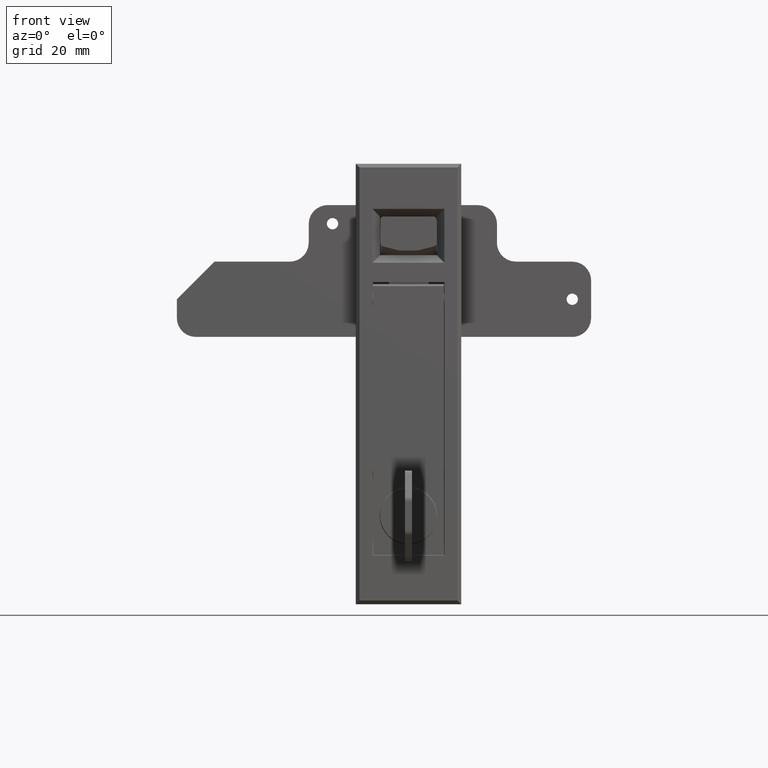
[diagram: clean part render]
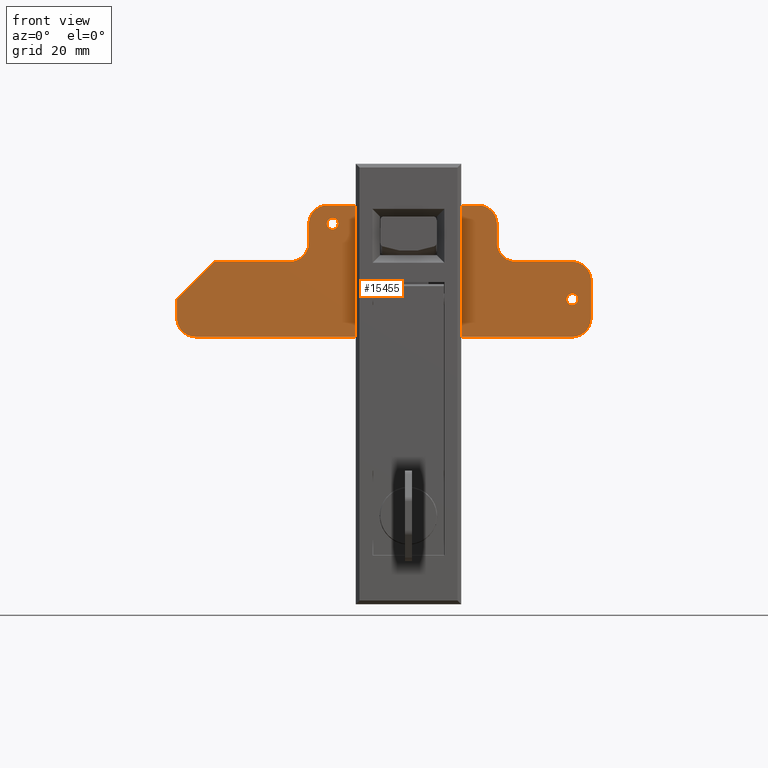
[diagram: same view with one face highlighted and labeled with its STEP entity id]
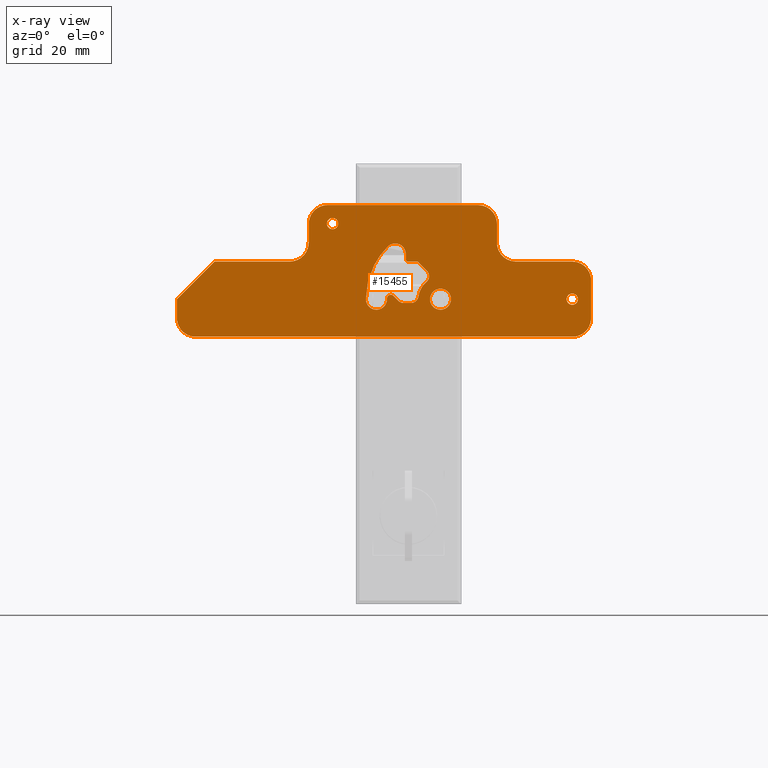
[diagram: x-ray of the same camera — body ghosted, the highlighted face saturated]
A machine part, front view. The second image highlights one B-rep face of the part: STEP entity #15455.
The next image is the same camera in x-ray: the body ghosted, the highlighted face saturated — about 0% of this face is hidden behind the body in this view.
In plain terms, the highlighted face is a freeform B-spline surface patch.
Its self-contained STEP definition (entity closure, byte-faithful):
#13598=CARTESIAN_POINT('',(0.0,20.170000000000002,21.574999999999999));
#13599=VERTEX_POINT('',#13598);
#13600=CARTESIAN_POINT('',(-1.249001E-016,18.674623999476950,20.192688644565582));
#13601=VERTEX_POINT('',#13600);
#13602=CARTESIAN_POINT('',(0.0,20.170000000000002,21.574999999999999));
#13603=CARTESIAN_POINT('',(0.0,18.783414264324193,21.575000000000003));
#13604=CARTESIAN_POINT('',(-1.249001E-016,18.674623999476960,20.192688644565575));
#13612=(BOUNDED_CURVE()B_SPLINE_CURVE(2,(#13602,#13603,#13604),.UNSPECIFIED.,.F.,.U.)B_SPLINE_CURVE_WITH_KNOTS((3,3),(0.0,0.236331300409500),.UNSPECIFIED.)CURVE()GEOMETRIC_REPRESENTATION_ITEM()RATIONAL_B_SPLINE_CURVE((1.0,0.723120658866771,0.969723355705874))REPRESENTATION_ITEM(''));
#13613=EDGE_CURVE('',#13599,#13601,#13612,.T.);
#13615=CARTESIAN_POINT('',(-1.249001E-016,21.665376000523050,19.957311355434431));
#13616=VERTEX_POINT('',#13615);
#13617=CARTESIAN_POINT('',(-1.249001E-016,21.665376000523054,19.957311355434427));
#13618=CARTESIAN_POINT('',(0.0,21.669999999999998,20.016064838510168));
#13619=CARTESIAN_POINT('',(0.0,21.670000000000002,20.074999999999999));
#13620=CARTESIAN_POINT('',(0.0,21.670000000000005,21.574999999999996));
#13621=CARTESIAN_POINT('',(0.0,20.170000000000002,21.574999999999999));
#13629=(BOUNDED_CURVE()B_SPLINE_CURVE(2,(#13617,#13618,#13619,#13620,#13621),.UNSPECIFIED.,.F.,.U.)B_SPLINE_CURVE_WITH_KNOTS((3,2,3),(0.736331300409500,0.750000000000000,1.0),.UNSPECIFIED.)CURVE()GEOMETRIC_REPRESENTATION_ITEM()RATIONAL_B_SPLINE_CURVE((0.969723355705874,0.983986122319777,1.0,0.707106781186548,1.0))REPRESENTATION_ITEM(''));
#13630=EDGE_CURVE('',#13616,#13599,#13629,.T.);
#13697=CARTESIAN_POINT('',(0.0,20.170000000000002,18.574999999999999));
#13698=VERTEX_POINT('',#13697);
#13699=CARTESIAN_POINT('',(-1.249001E-016,18.674623999476960,20.192688644565575));
#13700=CARTESIAN_POINT('',(0.0,18.669999999999998,20.133935161489831));
#13701=CARTESIAN_POINT('',(0.0,18.670000000000002,20.074999999999999));
#13702=CARTESIAN_POINT('',(0.0,18.669999999999998,18.574999999999999));
#13703=CARTESIAN_POINT('',(0.0,20.170000000000002,18.574999999999999));
#13711=(BOUNDED_CURVE()B_SPLINE_CURVE(2,(#13699,#13700,#13701,#13702,#13703),.UNSPECIFIED.,.F.,.U.)B_SPLINE_CURVE_WITH_KNOTS((3,2,3),(0.236331300409500,0.250000000000000,0.500000000000000),.UNSPECIFIED.)CURVE()GEOMETRIC_REPRESENTATION_ITEM()RATIONAL_B_SPLINE_CURVE((0.969723355705874,0.983986122319777,1.0,0.707106781186548,1.0))REPRESENTATION_ITEM(''));
#13712=EDGE_CURVE('',#13601,#13698,#13711,.T.);
#13746=CARTESIAN_POINT('',(0.0,20.170000000000002,18.574999999999999));
#13747=CARTESIAN_POINT('',(0.0,21.556585735675814,18.574999999999999));
#13748=CARTESIAN_POINT('',(-1.249001E-016,21.665376000523057,19.957311355434427));
#13756=(BOUNDED_CURVE()B_SPLINE_CURVE(2,(#13746,#13747,#13748),.UNSPECIFIED.,.F.,.U.)B_SPLINE_CURVE_WITH_KNOTS((3,3),(0.500000000000000,0.736331300409500),.UNSPECIFIED.)CURVE()GEOMETRIC_REPRESENTATION_ITEM()RATIONAL_B_SPLINE_CURVE((1.0,0.723120658866770,0.969723355705875))REPRESENTATION_ITEM(''));
#13757=EDGE_CURVE('',#13698,#13616,#13756,.T.);
#13780=CARTESIAN_POINT('',(0.0,-43.500000000000000,1.499999999999997));
#13781=VERTEX_POINT('',#13780);
#13782=CARTESIAN_POINT('',(-1.249001E-016,-44.995376000523052,0.117688644565571));
#13783=VERTEX_POINT('',#13782);
#13784=CARTESIAN_POINT('',(0.0,-43.500000000000000,1.499999999999997));
#13785=CARTESIAN_POINT('',(0.0,-44.886585735675794,1.499999999999998));
#13786=CARTESIAN_POINT('',(-1.249001E-016,-44.995376000523052,0.117688644565571));
#13794=(BOUNDED_CURVE()B_SPLINE_CURVE(2,(#13784,#13785,#13786),.UNSPECIFIED.,.F.,.U.)B_SPLINE_CURVE_WITH_KNOTS((3,3),(0.0,0.236331300409500),.UNSPECIFIED.)CURVE()GEOMETRIC_REPRESENTATION_ITEM()RATIONAL_B_SPLINE_CURVE((1.0,0.723120658866770,0.969723355705874))REPRESENTATION_ITEM(''));
#13795=EDGE_CURVE('',#13781,#13783,#13794,.T.);
#13797=CARTESIAN_POINT('',(-1.249001E-016,-42.004623999476948,-0.117688644565576));
#13798=VERTEX_POINT('',#13797);
#13799=CARTESIAN_POINT('',(-1.249001E-016,-42.004623999476948,-0.117688644565576));
#13800=CARTESIAN_POINT('',(0.0,-41.999999999999993,-0.058935161489832));
#13801=CARTESIAN_POINT('',(0.0,-41.999999999999993,-2.663519E-015));
#13802=CARTESIAN_POINT('',(0.0,-41.999999999999993,1.499999999999997));
#13803=CARTESIAN_POINT('',(0.0,-43.500000000000000,1.499999999999997));
#13811=(BOUNDED_CURVE()B_SPLINE_CURVE(2,(#13799,#13800,#13801,#13802,#13803),.UNSPECIFIED.,.F.,.U.)B_SPLINE_CURVE_WITH_KNOTS((3,2,3),(0.736331300409500,0.750000000000000,1.0),.UNSPECIFIED.)CURVE()GEOMETRIC_REPRESENTATION_ITEM()RATIONAL_B_SPLINE_CURVE((0.969723355705874,0.983986122319777,1.0,0.707106781186548,1.0))REPRESENTATION_ITEM(''));
#13812=EDGE_CURVE('',#13798,#13781,#13811,.T.);
#13879=CARTESIAN_POINT('',(0.0,-43.500000000000000,-1.500000000000003));
#13880=VERTEX_POINT('',#13879);
#13881=CARTESIAN_POINT('',(-1.249001E-016,-44.995376000523052,0.117688644565571));
#13882=CARTESIAN_POINT('',(0.0,-45.000000000000007,0.058935161489826));
#13883=CARTESIAN_POINT('',(0.0,-45.0,-2.663519E-015));
#13884=CARTESIAN_POINT('',(0.0,-45.0,-1.500000000000002));
#13885=CARTESIAN_POINT('',(0.0,-43.500000000000000,-1.500000000000003));
#13893=(BOUNDED_CURVE()B_SPLINE_CURVE(2,(#13881,#13882,#13883,#13884,#13885),.UNSPECIFIED.,.F.,.U.)B_SPLINE_CURVE_WITH_KNOTS((3,2,3),(0.236331300409500,0.250000000000000,0.500000000000000),.UNSPECIFIED.)CURVE()GEOMETRIC_REPRESENTATION_ITEM()RATIONAL_B_SPLINE_CURVE((0.969723355705874,0.983986122319777,1.0,0.707106781186548,1.0))REPRESENTATION_ITEM(''));
#13894=EDGE_CURVE('',#13783,#13880,#13893,.T.);
#13928=CARTESIAN_POINT('',(0.0,-43.500000000000000,-1.500000000000003));
#13929=CARTESIAN_POINT('',(0.0,-42.113414264324184,-1.500000000000003));
#13930=CARTESIAN_POINT('',(-1.249001E-016,-42.004623999476948,-0.117688644565576));
#13938=(BOUNDED_CURVE()B_SPLINE_CURVE(2,(#13928,#13929,#13930),.UNSPECIFIED.,.F.,.U.)B_SPLINE_CURVE_WITH_KNOTS((3,3),(0.500000000000000,0.736331300409500),.UNSPECIFIED.)CURVE()GEOMETRIC_REPRESENTATION_ITEM()RATIONAL_B_SPLINE_CURVE((1.0,0.723120658866770,0.969723355705875))REPRESENTATION_ITEM(''));
#13939=EDGE_CURVE('',#13880,#13798,#13938,.T.);
#13962=CARTESIAN_POINT('',(0.0,-8.500000000000000,2.799999999999999));
#13963=VERTEX_POINT('',#13962);
#13964=CARTESIAN_POINT('',(-1.249001E-016,-11.291368534432429,0.219685468296303));
#13965=VERTEX_POINT('',#13964);
#13966=CARTESIAN_POINT('',(0.0,-8.500000000000000,2.799999999999999));
#13967=CARTESIAN_POINT('',(0.0,-11.088293376162412,2.799999999999999));
#13968=CARTESIAN_POINT('',(-1.249001E-016,-11.291368534432431,0.219685468296303));
#13976=(BOUNDED_CURVE()B_SPLINE_CURVE(2,(#13966,#13967,#13968),.UNSPECIFIED.,.F.,.U.)B_SPLINE_CURVE_WITH_KNOTS((3,3),(0.0,0.236331300601037),.UNSPECIFIED.)CURVE()GEOMETRIC_REPRESENTATION_ITEM()RATIONAL_B_SPLINE_CURVE((1.0,0.723120658642371,0.969723356105597))REPRESENTATION_ITEM(''));
#13977=EDGE_CURVE('',#13963,#13965,#13976,.T.);
#13979=CARTESIAN_POINT('',(-1.249001E-016,-5.708631465567574,-0.219685468296305));
#13980=VERTEX_POINT('',#13979);
#13981=CARTESIAN_POINT('',(-1.249001E-016,-5.708631465567574,-0.219685468296305));
#13982=CARTESIAN_POINT('',(0.0,-5.700000000000000,-0.110012299881012));
#13983=CARTESIAN_POINT('',(0.0,-5.700000000000000,-8.881784E-016));
#13984=CARTESIAN_POINT('',(0.0,-5.699999999999999,2.799999999999999));
#13985=CARTESIAN_POINT('',(0.0,-8.500000000000000,2.799999999999999));
#13993=(BOUNDED_CURVE()B_SPLINE_CURVE(2,(#13981,#13982,#13983,#13984,#13985),.UNSPECIFIED.,.F.,.U.)B_SPLINE_CURVE_WITH_KNOTS((3,2,3),(0.736331300601037,0.750000000000000,1.0),.UNSPECIFIED.)CURVE()GEOMETRIC_REPRESENTATION_ITEM()RATIONAL_B_SPLINE_CURVE((0.969723356105597,0.983986122544177,1.0,0.707106781186547,1.0))REPRESENTATION_ITEM(''));
#13994=EDGE_CURVE('',#13980,#13963,#13993,.T.);
#14061=CARTESIAN_POINT('',(0.0,-8.500000000000000,-2.800000000000001));
#14062=VERTEX_POINT('',#14061);
#14063=CARTESIAN_POINT('',(-1.249001E-016,-11.291368534432427,0.219685468296303));
#14064=CARTESIAN_POINT('',(0.0,-11.300000000000006,0.110012299881010));
#14065=CARTESIAN_POINT('',(0.0,-11.300000000000001,-8.881784E-016));
#14066=CARTESIAN_POINT('',(0.0,-11.300000000000001,-2.800000000000000));
#14067=CARTESIAN_POINT('',(0.0,-8.500000000000000,-2.800000000000001));
#14075=(BOUNDED_CURVE()B_SPLINE_CURVE(2,(#14063,#14064,#14065,#14066,#14067),.UNSPECIFIED.,.F.,.U.)B_SPLINE_CURVE_WITH_KNOTS((3,2,3),(0.236331300601037,0.250000000000000,0.500000000000000),.UNSPECIFIED.)CURVE()GEOMETRIC_REPRESENTATION_ITEM()RATIONAL_B_SPLINE_CURVE((0.969723356105597,0.983986122544177,1.0,0.707106781186547,1.0))REPRESENTATION_ITEM(''));
#14076=EDGE_CURVE('',#13965,#14062,#14075,.T.);
#14110=CARTESIAN_POINT('',(0.0,-8.500000000000000,-2.800000000000001));
#14111=CARTESIAN_POINT('',(0.0,-5.911706623837599,-2.800000000000001));
#14112=CARTESIAN_POINT('',(-1.249001E-016,-5.708631465567574,-0.219685468296305));
#14120=(BOUNDED_CURVE()B_SPLINE_CURVE(2,(#14110,#14111,#14112),.UNSPECIFIED.,.F.,.U.)B_SPLINE_CURVE_WITH_KNOTS((3,3),(0.500000000000000,0.736331300601036),.UNSPECIFIED.)CURVE()GEOMETRIC_REPRESENTATION_ITEM()RATIONAL_B_SPLINE_CURVE((1.0,0.723120658642372,0.969723356105595))REPRESENTATION_ITEM(''));
#14121=EDGE_CURVE('',#14062,#13980,#14120,.T.);
#14140=CARTESIAN_POINT('',(0.0,-2.647685432154780,0.746834261424279));
#14141=VERTEX_POINT('',#14140);
#14142=CARTESIAN_POINT('',(0.0,-0.664000000000101,-1.0));
#14143=VERTEX_POINT('',#14142);
#14144=CARTESIAN_POINT('',(0.0,-2.647685432154777,0.746834261424279));
#14145=CARTESIAN_POINT('',(0.0,-2.424800374256769,-0.999802577739425));
#14146=CARTESIAN_POINT('',(0.0,-0.664000000000101,-0.999999999999998));
#14154=(BOUNDED_CURVE()B_SPLINE_CURVE(2,(#14144,#14145,#14146),.UNSPECIFIED.,.F.,.U.)CURVE()GEOMETRIC_REPRESENTATION_ITEM()QUASI_UNIFORM_CURVE()RATIONAL_B_SPLINE_CURVE((1.0,0.750564084766156,1.0))REPRESENTATION_ITEM(''));
#14155=EDGE_CURVE('',#14141,#14143,#14154,.T.);
#14192=CARTESIAN_POINT('',(0.0,1.268000000000086,-1.0));
#14193=VERTEX_POINT('',#14192);
#14194=CARTESIAN_POINT('',(0.0,1.268000000000086,-1.0));
#14195=CARTESIAN_POINT('',(0.0,-0.664000000000101,-1.0));
#14196=QUASI_UNIFORM_CURVE('',1,(#14194,#14195),.UNSPECIFIED.,.F.,.U.);
#14197=EDGE_CURVE('',#14193,#14143,#14196,.T.);
#14229=CARTESIAN_POINT('',(0.0,2.706053986238550,-0.389964291866400));
#14230=VERTEX_POINT('',#14229);
#14231=CARTESIAN_POINT('',(0.0,1.268000000000086,-1.0));
#14232=CARTESIAN_POINT('',(0.0,2.116418368116123,-1.0));
#14233=CARTESIAN_POINT('',(0.0,2.706053986238550,-0.389964291866401));
#14241=(BOUNDED_CURVE()B_SPLINE_CURVE(2,(#14231,#14232,#14233),.UNSPECIFIED.,.F.,.U.)CURVE()GEOMETRIC_REPRESENTATION_ITEM()QUASI_UNIFORM_CURVE()RATIONAL_B_SPLINE_CURVE((1.0,0.920592783464329,1.0))REPRESENTATION_ITEM(''));
#14242=EDGE_CURVE('',#14193,#14230,#14241,.T.);
#14273=CARTESIAN_POINT('',(0.0,3.985973006883475,0.888982145936004));
#14274=VERTEX_POINT('',#14273);
#14275=CARTESIAN_POINT('',(0.0,3.985973006883475,0.888982145936004));
#14276=CARTESIAN_POINT('',(0.0,2.706053986238550,-0.389964291866400));
#14277=QUASI_UNIFORM_CURVE('',1,(#14275,#14276),.UNSPECIFIED.,.F.,.U.);
#14278=EDGE_CURVE('',#14274,#14230,#14277,.T.);
#14314=CARTESIAN_POINT('',(0.0,5.704077029608049,0.151045501868276));
#14315=VERTEX_POINT('',#14314);
#14316=CARTESIAN_POINT('',(0.0,5.704077029608049,0.151045501868275));
#14317=CARTESIAN_POINT('',(0.0,5.733719332986361,0.840494702719235));
#14318=CARTESIAN_POINT('',(0.0,5.099644939660021,1.112833701820414));
#14319=CARTESIAN_POINT('',(0.0,4.465570546333680,1.385172700921593));
#14320=CARTESIAN_POINT('',(0.0,3.985973006883477,0.888982145936002));
#14328=(BOUNDED_CURVE()B_SPLINE_CURVE(2,(#14316,#14317,#14318,#14319,#14320),.UNSPECIFIED.,.F.,.U.)B_SPLINE_CURVE_WITH_KNOTS((3,2,3),(0.0,0.500000000000000,1.0),.UNSPECIFIED.)CURVE()GEOMETRIC_REPRESENTATION_ITEM()RATIONAL_B_SPLINE_CURVE((1.0,0.823046977254926,1.0,0.823046977254926,1.0))REPRESENTATION_ITEM(''));
#14329=EDGE_CURVE('',#14315,#14274,#14328,.T.);
#14375=CARTESIAN_POINT('',(0.0,11.300000000000001,2.955535E-016));
#14376=VERTEX_POINT('',#14375);
#14377=CARTESIAN_POINT('',(0.0,5.704077029608048,0.151045501868276));
#14378=CARTESIAN_POINT('',(0.0,5.615049788506117,-1.496890420146690));
#14379=CARTESIAN_POINT('',(0.0,7.013676440737773,-2.372939585657853));
#14380=CARTESIAN_POINT('',(0.0,8.412303092969429,-3.248988751169016));
#14381=CARTESIAN_POINT('',(0.0,9.856151546484714,-2.449663851014485));
#14382=CARTESIAN_POINT('',(0.0,11.299999999999999,-1.650338950859953));
#14383=CARTESIAN_POINT('',(0.0,11.300000000000001,5.204577E-016));
#14391=(BOUNDED_CURVE()B_SPLINE_CURVE(2,(#14377,#14378,#14379,#14380,#14381,#14382,#14383),.UNSPECIFIED.,.F.,.U.)B_SPLINE_CURVE_WITH_KNOTS((3,2,2,3),(0.0,0.333333333333333,0.666666666666667,1.0),.UNSPECIFIED.)CURVE()GEOMETRIC_REPRESENTATION_ITEM()RATIONAL_B_SPLINE_CURVE((1.0,0.861492843275629,1.0,0.861492843275629,1.0,0.861492843275629,1.0))REPRESENTATION_ITEM(''));
#14392=EDGE_CURVE('',#14315,#14376,#14391,.T.);
#14436=CARTESIAN_POINT('',(0.0,5.500806627407970,14.000806627408000));
#14437=VERTEX_POINT('',#14436);
#14438=CARTESIAN_POINT('',(0.0,11.300000000000001,2.955535E-016));
#14439=CARTESIAN_POINT('',(0.0,11.300130617074327,8.201482637741677));
#14440=CARTESIAN_POINT('',(0.0,5.500806627407979,14.000806627408020));
#14448=(BOUNDED_CURVE()B_SPLINE_CURVE(2,(#14438,#14439,#14440),.UNSPECIFIED.,.F.,.U.)CURVE()GEOMETRIC_REPRESENTATION_ITEM()QUASI_UNIFORM_CURVE()RATIONAL_B_SPLINE_CURVE((1.0,0.923876485167716,1.0))REPRESENTATION_ITEM(''));
#14449=EDGE_CURVE('',#14376,#14437,#14448,.T.);
#14493=CARTESIAN_POINT('',(0.0,0.721000000000000,12.021000002072300));
#14494=VERTEX_POINT('',#14493);
#14495=CARTESIAN_POINT('',(0.0,5.500806627407959,14.000806627407989));
#14496=CARTESIAN_POINT('',(0.0,4.177919815799071,15.323693439016868));
#14497=CARTESIAN_POINT('',(0.0,2.449477983771472,14.607768955600831));
#14498=CARTESIAN_POINT('',(0.0,0.721036151743874,13.891844472184795));
#14499=CARTESIAN_POINT('',(0.0,0.721000000000000,12.021000002072300));
#14507=(BOUNDED_CURVE()B_SPLINE_CURVE(2,(#14495,#14496,#14497,#14498,#14499),.UNSPECIFIED.,.F.,.U.)B_SPLINE_CURVE_WITH_KNOTS((3,2,3),(0.0,0.500000000000000,1.0),.UNSPECIFIED.)CURVE()GEOMETRIC_REPRESENTATION_ITEM()RATIONAL_B_SPLINE_CURVE((1.0,0.831472296218884,1.0,0.831472296218884,1.0))REPRESENTATION_ITEM(''));
#14508=EDGE_CURVE('',#14437,#14494,#14507,.T.);
#14541=CARTESIAN_POINT('',(0.0,0.721000000000061,10.500000000000000));
#14542=VERTEX_POINT('',#14541);
#14543=CARTESIAN_POINT('',(0.0,0.721000000000061,10.500000000000000));
#14544=CARTESIAN_POINT('',(0.0,0.721000000000000,12.021000002072300));
#14545=QUASI_UNIFORM_CURVE('',1,(#14543,#14544),.UNSPECIFIED.,.F.,.U.);
#14546=EDGE_CURVE('',#14542,#14494,#14545,.T.);
#14578=CARTESIAN_POINT('',(0.0,0.221000000000061,10.0));
#14579=VERTEX_POINT('',#14578);
#14580=CARTESIAN_POINT('',(0.0,0.221000000000061,10.0));
#14581=CARTESIAN_POINT('',(0.0,0.721000000000061,10.000000000000002));
#14582=CARTESIAN_POINT('',(0.0,0.721000000000061,10.500000000000000));
#14590=(BOUNDED_CURVE()B_SPLINE_CURVE(2,(#14580,#14581,#14582),.UNSPECIFIED.,.F.,.U.)CURVE()GEOMETRIC_REPRESENTATION_ITEM()QUASI_UNIFORM_CURVE()RATIONAL_B_SPLINE_CURVE((1.0,0.707106781186548,1.0))REPRESENTATION_ITEM(''));
#14591=EDGE_CURVE('',#14579,#14542,#14590,.T.);
#14622=CARTESIAN_POINT('',(0.0,-2.459999999999925,10.0));
#14623=VERTEX_POINT('',#14622);
#14624=CARTESIAN_POINT('',(0.0,-2.459999999999925,10.0));
#14625=CARTESIAN_POINT('',(0.0,0.221000000000061,10.0));
#14626=QUASI_UNIFORM_CURVE('',1,(#14624,#14625),.UNSPECIFIED.,.F.,.U.);
#14627=EDGE_CURVE('',#14623,#14579,#14626,.T.);
#14650=CARTESIAN_POINT('',(0.0,-4.922846565640940,7.538153372063340));
#14651=VERTEX_POINT('',#14650);
#14652=CARTESIAN_POINT('',(0.0,-4.922846565640940,7.538153372063340));
#14653=CARTESIAN_POINT('',(0.0,-2.459999999999925,10.0));
#14654=QUASI_UNIFORM_CURVE('',1,(#14652,#14653),.UNSPECIFIED.,.F.,.U.);
#14655=EDGE_CURVE('',#14651,#14623,#14654,.T.);
#14687=CARTESIAN_POINT('',(0.0,-4.772484693166960,4.573360868915271));
#14688=VERTEX_POINT('',#14687);
#14689=CARTESIAN_POINT('',(0.0,-4.922846565640936,7.538153372063335));
#14690=CARTESIAN_POINT('',(0.0,-5.551365283599269,6.909889838318543));
#14691=CARTESIAN_POINT('',(0.0,-5.506353039475068,6.022351250686217));
#14692=CARTESIAN_POINT('',(0.0,-5.461340795350868,5.134812663053892));
#14693=CARTESIAN_POINT('',(0.0,-4.772484693166964,4.573360868915266));
#14701=(BOUNDED_CURVE()B_SPLINE_CURVE(2,(#14689,#14690,#14691,#14692,#14693),.UNSPECIFIED.,.F.,.U.)B_SPLINE_CURVE_WITH_KNOTS((3,2,3),(0.0,0.500000000000000,1.0),.UNSPECIFIED.)CURVE()GEOMETRIC_REPRESENTATION_ITEM()RATIONAL_B_SPLINE_CURVE((1.0,0.913847092099599,1.0,0.913847092099599,1.0))REPRESENTATION_ITEM(''));
#14702=EDGE_CURVE('',#14651,#14688,#14701,.T.);
#14744=CARTESIAN_POINT('',(0.0,-2.647685432154780,0.746834261424279));
#14745=CARTESIAN_POINT('',(0.0,-2.945976884946469,3.084392665630474));
#14746=CARTESIAN_POINT('',(0.0,-4.772484693166962,4.573360868915267));
#14754=(BOUNDED_CURVE()B_SPLINE_CURVE(2,(#14744,#14745,#14746),.UNSPECIFIED.,.F.,.U.)CURVE()GEOMETRIC_REPRESENTATION_ITEM()QUASI_UNIFORM_CURVE()RATIONAL_B_SPLINE_CURVE((1.0,0.928676928307259,1.0))REPRESENTATION_ITEM(''));
#14755=EDGE_CURVE('',#14141,#14688,#14754,.T.);
#14789=CARTESIAN_POINT('',(0.0,-18.500000000000000,25.0));
#14790=VERTEX_POINT('',#14789);
#14791=CARTESIAN_POINT('',(0.0,-23.500000000000000,20.0));
#14792=VERTEX_POINT('',#14791);
#14793=CARTESIAN_POINT('',(0.0,-18.500000000000000,25.0));
#14794=CARTESIAN_POINT('',(0.0,-23.500000000000004,25.0));
#14795=CARTESIAN_POINT('',(0.0,-23.500000000000000,20.0));
#14803=(BOUNDED_CURVE()B_SPLINE_CURVE(2,(#14793,#14794,#14795),.UNSPECIFIED.,.F.,.U.)CURVE()GEOMETRIC_REPRESENTATION_ITEM()QUASI_UNIFORM_CURVE()RATIONAL_B_SPLINE_CURVE((1.0,0.707106781186548,1.0))REPRESENTATION_ITEM(''));
#14804=EDGE_CURVE('',#14790,#14792,#14803,.T.);
#14841=CARTESIAN_POINT('',(0.0,21.500000000000000,25.0));
#14842=VERTEX_POINT('',#14841);
#14843=CARTESIAN_POINT('',(0.0,21.500000000000000,25.0));
#14844=CARTESIAN_POINT('',(0.0,-18.500000000000000,25.0));
#14845=QUASI_UNIFORM_CURVE('',1,(#14843,#14844),.UNSPECIFIED.,.F.,.U.);
#14846=EDGE_CURVE('',#14842,#14790,#14845,.T.);
#14878=CARTESIAN_POINT('',(0.0,26.500000000000000,20.0));
#14879=VERTEX_POINT('',#14878);
#14880=CARTESIAN_POINT('',(0.0,26.500000000000000,20.0));
#14881=CARTESIAN_POINT('',(0.0,26.500000000000000,25.0));
#14882=CARTESIAN_POINT('',(0.0,21.500000000000000,25.0));
#14890=(BOUNDED_CURVE()B_SPLINE_CURVE(2,(#14880,#14881,#14882),.UNSPECIFIED.,.F.,.U.)CURVE()GEOMETRIC_REPRESENTATION_ITEM()QUASI_UNIFORM_CURVE()RATIONAL_B_SPLINE_CURVE((1.0,0.707106781186548,1.0))REPRESENTATION_ITEM(''));
#14891=EDGE_CURVE('',#14879,#14842,#14890,.T.);
#14922=CARTESIAN_POINT('',(0.0,26.500000000000000,15.0));
#14923=VERTEX_POINT('',#14922);
#14924=CARTESIAN_POINT('',(0.0,26.500000000000000,15.0));
#14925=CARTESIAN_POINT('',(0.0,26.500000000000000,20.0));
#14926=QUASI_UNIFORM_CURVE('',1,(#14924,#14925),.UNSPECIFIED.,.F.,.U.);
#14927=EDGE_CURVE('',#14923,#14879,#14926,.T.);
#14959=CARTESIAN_POINT('',(0.0,31.500000000000000,10.0));
#14960=VERTEX_POINT('',#14959);
#14961=CARTESIAN_POINT('',(0.0,26.500000000000000,15.0));
#14962=CARTESIAN_POINT('',(0.0,26.500000000000000,9.999999999999998));
#14963=CARTESIAN_POINT('',(0.0,31.500000000000000,9.999999999999998));
#14971=(BOUNDED_CURVE()B_SPLINE_CURVE(2,(#14961,#14962,#14963),.UNSPECIFIED.,.F.,.U.)CURVE()GEOMETRIC_REPRESENTATION_ITEM()QUASI_UNIFORM_CURVE()RATIONAL_B_SPLINE_CURVE((1.0,0.707106781186548,1.0))REPRESENTATION_ITEM(''));
#14972=EDGE_CURVE('',#14923,#14960,#14971,.T.);
#15003=CARTESIAN_POINT('',(0.0,51.500000000000000,10.0));
#15004=VERTEX_POINT('',#15003);
#15005=CARTESIAN_POINT('',(0.0,51.500000000000000,10.0));
#15006=CARTESIAN_POINT('',(0.0,31.500000000000000,10.0));
#15007=QUASI_UNIFORM_CURVE('',1,(#15005,#15006),.UNSPECIFIED.,.F.,.U.);
#15008=EDGE_CURVE('',#15004,#14960,#15007,.T.);
#15031=CARTESIAN_POINT('',(0.0,61.500000000000000,3.765665E-015));
#15032=VERTEX_POINT('',#15031);
#15033=CARTESIAN_POINT('',(0.0,61.500000000000000,3.765665E-015));
#15034=CARTESIAN_POINT('',(0.0,51.500000000000000,10.0));
#15035=QUASI_UNIFORM_CURVE('',1,(#15033,#15034),.UNSPECIFIED.,.F.,.U.);
#15036=EDGE_CURVE('',#15032,#15004,#15035,.T.);
#15059=CARTESIAN_POINT('',(0.0,61.500000000000000,-4.999999999999901));
#15060=VERTEX_POINT('',#15059);
#15061=CARTESIAN_POINT('',(0.0,61.500000000000000,-4.999999999999901));
#15062=CARTESIAN_POINT('',(0.0,61.500000000000000,3.765665E-015));
#15063=QUASI_UNIFORM_CURVE('',1,(#15061,#15062),.UNSPECIFIED.,.F.,.U.);
#15064=EDGE_CURVE('',#15060,#15032,#15063,.T.);
#15096=CARTESIAN_POINT('',(0.0,56.500000000000000,-10.0));
#15097=VERTEX_POINT('',#15096);
#15098=CARTESIAN_POINT('',(0.0,56.500000000000000,-9.999999999999901));
#15099=CARTESIAN_POINT('',(0.0,61.500000000000007,-9.999999999999901));
#15100=CARTESIAN_POINT('',(0.0,61.500000000000000,-4.999999999999901));
#15108=(BOUNDED_CURVE()B_SPLINE_CURVE(2,(#15098,#15099,#15100),.UNSPECIFIED.,.F.,.U.)CURVE()GEOMETRIC_REPRESENTATION_ITEM()QUASI_UNIFORM_CURVE()RATIONAL_B_SPLINE_CURVE((1.0,0.707106781186548,1.0))REPRESENTATION_ITEM(''));
#15109=EDGE_CURVE('',#15097,#15060,#15108,.T.);
#15140=CARTESIAN_POINT('',(0.0,-43.500000000000000,-10.0));
#15141=VERTEX_POINT('',#15140);
#15142=CARTESIAN_POINT('',(0.0,-43.500000000000000,-10.0));
#15143=CARTESIAN_POINT('',(0.0,56.500000000000000,-10.0));
#15144=QUASI_UNIFORM_CURVE('',1,(#15142,#15143),.UNSPECIFIED.,.F.,.U.);
#15145=EDGE_CURVE('',#15141,#15097,#15144,.T.);
#15177=CARTESIAN_POINT('',(0.0,-48.500000000000000,-4.999999999999901));
#15178=VERTEX_POINT('',#15177);
#15179=CARTESIAN_POINT('',(0.0,-48.499999999999993,-4.999999999999901));
#15180=CARTESIAN_POINT('',(0.0,-48.500000000000007,-9.999999999999901));
#15181=CARTESIAN_POINT('',(0.0,-43.500000000000000,-9.999999999999901));
#15189=(BOUNDED_CURVE()B_SPLINE_CURVE(2,(#15179,#15180,#15181),.UNSPECIFIED.,.F.,.U.)CURVE()GEOMETRIC_REPRESENTATION_ITEM()QUASI_UNIFORM_CURVE()RATIONAL_B_SPLINE_CURVE((1.0,0.707106781186548,1.0))REPRESENTATION_ITEM(''));
#15190=EDGE_CURVE('',#15178,#15141,#15189,.T.);
#15221=CARTESIAN_POINT('',(0.0,-48.500000000000000,5.000000000000100));
#15222=VERTEX_POINT('',#15221);
#15223=CARTESIAN_POINT('',(0.0,-48.500000000000000,5.000000000000100));
#15224=CARTESIAN_POINT('',(0.0,-48.500000000000000,-4.999999999999901));
#15225=QUASI_UNIFORM_CURVE('',1,(#15223,#15224),.UNSPECIFIED.,.F.,.U.);
#15226=EDGE_CURVE('',#15222,#15178,#15225,.T.);
#15258=CARTESIAN_POINT('',(0.0,-43.500000000000000,10.0));
#15259=VERTEX_POINT('',#15258);
#15260=CARTESIAN_POINT('',(0.0,-43.500000000000000,10.000000000000099));
#15261=CARTESIAN_POINT('',(0.0,-48.500000000000007,10.000000000000099));
#15262=CARTESIAN_POINT('',(0.0,-48.499999999999993,5.000000000000100));
#15270=(BOUNDED_CURVE()B_SPLINE_CURVE(2,(#15260,#15261,#15262),.UNSPECIFIED.,.F.,.U.)CURVE()GEOMETRIC_REPRESENTATION_ITEM()QUASI_UNIFORM_CURVE()RATIONAL_B_SPLINE_CURVE((1.0,0.707106781186548,1.0))REPRESENTATION_ITEM(''));
#15271=EDGE_CURVE('',#15259,#15222,#15270,.T.);
#15302=CARTESIAN_POINT('',(0.0,-28.500000000000000,10.0));
#15303=VERTEX_POINT('',#15302);
#15304=CARTESIAN_POINT('',(0.0,-28.500000000000000,10.0));
#15305=CARTESIAN_POINT('',(0.0,-43.500000000000000,10.0));
#15306=QUASI_UNIFORM_CURVE('',1,(#15304,#15305),.UNSPECIFIED.,.F.,.U.);
#15307=EDGE_CURVE('',#15303,#15259,#15306,.T.);
#15339=CARTESIAN_POINT('',(0.0,-23.500000000000000,15.0));
#15340=VERTEX_POINT('',#15339);
#15341=CARTESIAN_POINT('',(0.0,-28.500000000000000,9.999999999999998));
#15342=CARTESIAN_POINT('',(0.0,-23.500000000000004,9.999999999999998));
#15343=CARTESIAN_POINT('',(0.0,-23.500000000000000,15.0));
#15351=(BOUNDED_CURVE()B_SPLINE_CURVE(2,(#15341,#15342,#15343),.UNSPECIFIED.,.F.,.U.)CURVE()GEOMETRIC_REPRESENTATION_ITEM()QUASI_UNIFORM_CURVE()RATIONAL_B_SPLINE_CURVE((1.0,0.707106781186548,1.0))REPRESENTATION_ITEM(''));
#15352=EDGE_CURVE('',#15303,#15340,#15351,.T.);
#15383=CARTESIAN_POINT('',(0.0,-23.500000000000000,20.0));
#15384=CARTESIAN_POINT('',(0.0,-23.500000000000000,15.0));
#15385=QUASI_UNIFORM_CURVE('',1,(#15383,#15384),.UNSPECIFIED.,.F.,.U.);
#15386=EDGE_CURVE('',#14792,#15340,#15385,.T.);
#15398=CARTESIAN_POINT('',(0.0,-53.994499786798670,26.748249932163208));
#15399=CARTESIAN_POINT('',(0.0,66.994502737228572,26.748249932163208));
#15400=CARTESIAN_POINT('',(0.0,-53.994499786798670,-11.748250870936360));
#15401=CARTESIAN_POINT('',(0.0,66.994502737228572,-11.748250870936360));
#15402=B_SPLINE_SURFACE_WITH_KNOTS('',1,1,((#15398,#15400),(#15399,#15401)),.UNSPECIFIED.,.F.,.F.,.U.,(2,2),(2,2),(0.0,120.989002524027200),(0.0,38.496500803099579),.UNSPECIFIED.);
#15403=ORIENTED_EDGE('',*,*,#15386,.F.);
#15404=ORIENTED_EDGE('',*,*,#14804,.F.);
#15405=ORIENTED_EDGE('',*,*,#14846,.F.);
#15406=ORIENTED_EDGE('',*,*,#14891,.F.);
#15407=ORIENTED_EDGE('',*,*,#14927,.F.);
#15408=ORIENTED_EDGE('',*,*,#14972,.T.);
#15409=ORIENTED_EDGE('',*,*,#15008,.F.);
#15410=ORIENTED_EDGE('',*,*,#15036,.F.);
#15411=ORIENTED_EDGE('',*,*,#15064,.F.);
#15412=ORIENTED_EDGE('',*,*,#15109,.F.);
#15413=ORIENTED_EDGE('',*,*,#15145,.F.);
#15414=ORIENTED_EDGE('',*,*,#15190,.F.);
#15415=ORIENTED_EDGE('',*,*,#15226,.F.);
#15416=ORIENTED_EDGE('',*,*,#15271,.F.);
#15417=ORIENTED_EDGE('',*,*,#15307,.F.);
#15418=ORIENTED_EDGE('',*,*,#15352,.T.);
#15419=EDGE_LOOP('',(#15403,#15404,#15405,#15406,#15407,#15408,#15409,#15410,#15411,#15412,#15413,#15414,#15415,#15416,#15417,#15418));
#15420=FACE_OUTER_BOUND('',#15419,.T.);
#15421=ORIENTED_EDGE('',*,*,#14702,.T.);
#15422=ORIENTED_EDGE('',*,*,#14755,.F.);
#15423=ORIENTED_EDGE('',*,*,#14155,.T.);
#15424=ORIENTED_EDGE('',*,*,#14197,.F.);
#15425=ORIENTED_EDGE('',*,*,#14242,.T.);
#15426=ORIENTED_EDGE('',*,*,#14278,.F.);
#15427=ORIENTED_EDGE('',*,*,#14329,.F.);
#15428=ORIENTED_EDGE('',*,*,#14392,.T.);
#15429=ORIENTED_EDGE('',*,*,#14449,.T.);
#15430=ORIENTED_EDGE('',*,*,#14508,.T.);
#15431=ORIENTED_EDGE('',*,*,#14546,.F.);
#15432=ORIENTED_EDGE('',*,*,#14591,.F.);
#15433=ORIENTED_EDGE('',*,*,#14627,.F.);
#15434=ORIENTED_EDGE('',*,*,#14655,.F.);
#15435=EDGE_LOOP('',(#15421,#15422,#15423,#15424,#15425,#15426,#15427,#15428,#15429,#15430,#15431,#15432,#15433,#15434));
#15436=FACE_BOUND('',#15435,.T.);
#15437=ORIENTED_EDGE('',*,*,#14121,.T.);
#15438=ORIENTED_EDGE('',*,*,#13994,.T.);
#15439=ORIENTED_EDGE('',*,*,#13977,.T.);
#15440=ORIENTED_EDGE('',*,*,#14076,.T.);
#15441=EDGE_LOOP('',(#15437,#15438,#15439,#15440));
#15442=FACE_BOUND('',#15441,.T.);
#15443=ORIENTED_EDGE('',*,*,#13939,.T.);
#15444=ORIENTED_EDGE('',*,*,#13812,.T.);
#15445=ORIENTED_EDGE('',*,*,#13795,.T.);
#15446=ORIENTED_EDGE('',*,*,#13894,.T.);
#15447=EDGE_LOOP('',(#15443,#15444,#15445,#15446));
#15448=FACE_BOUND('',#15447,.T.);
#15449=ORIENTED_EDGE('',*,*,#13757,.T.);
#15450=ORIENTED_EDGE('',*,*,#13630,.T.);
#15451=ORIENTED_EDGE('',*,*,#13613,.T.);
#15452=ORIENTED_EDGE('',*,*,#13712,.T.);
#15453=EDGE_LOOP('',(#15449,#15450,#15451,#15452));
#15454=FACE_BOUND('',#15453,.T.);
#15455=ADVANCED_FACE('',(#15420,#15436,#15442,#15448,#15454),#15402,.T.);